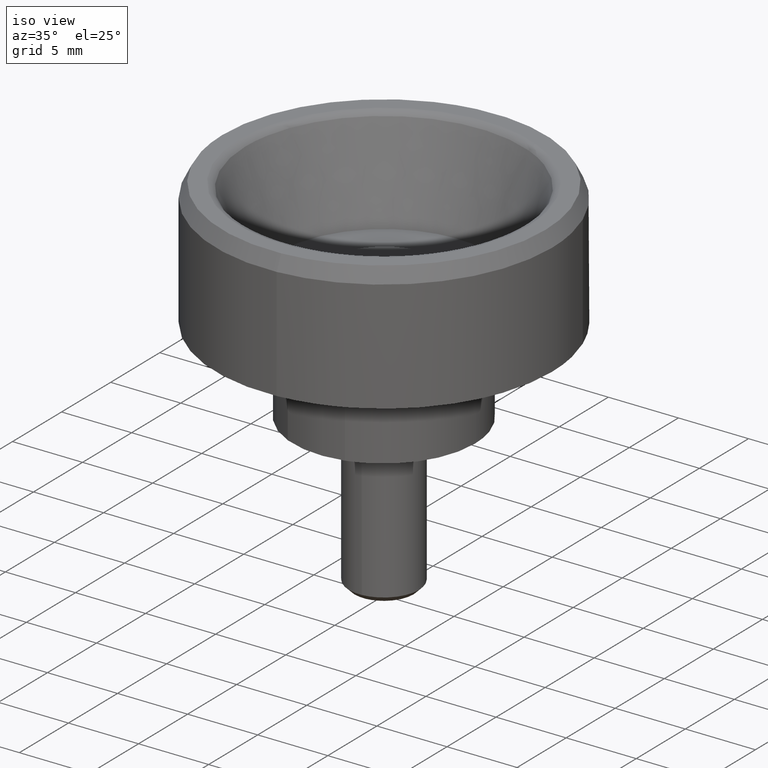
[diagram: clean part render]
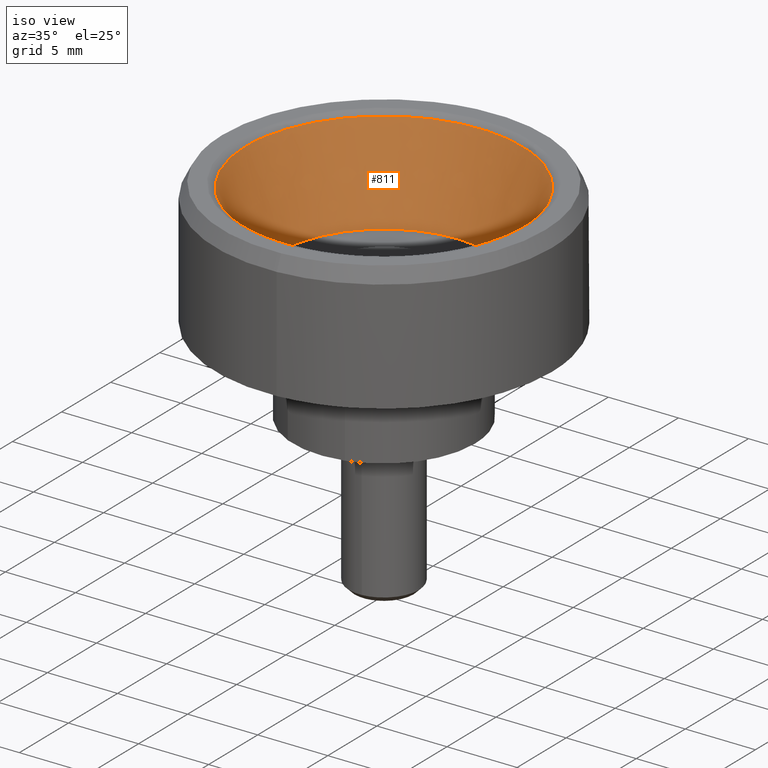
[diagram: same view with one face highlighted and labeled with its STEP entity id]
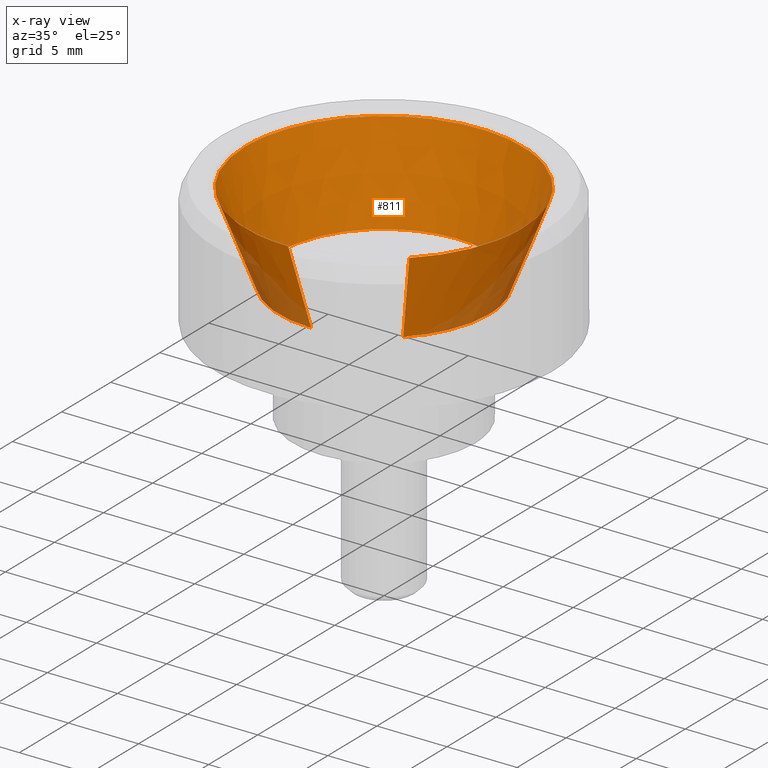
[diagram: x-ray of the same camera — body ghosted, the highlighted face saturated]
A machine part, iso view. The second image highlights one B-rep face of the part: STEP entity #811.
The next image is the same camera in x-ray: the body ghosted, the highlighted face saturated — about 8% of this face is hidden behind the body in this view.
In plain terms, the highlighted face is a freeform B-spline surface patch.
Its self-contained STEP definition (entity closure, byte-faithful):
#641=CARTESIAN_POINT('',(5.131317220042669,-5.388120412191873,9.345512761504658));
#642=CARTESIAN_POINT('',(7.468462703307026,-3.162365613378687,9.345512761504660));
#643=CARTESIAN_POINT('',(7.440298516791025,0.064930501479818,9.345512761504660));
#644=CARTESIAN_POINT('',(7.375368015311206,7.505229018270842,9.345512761504660));
#645=CARTESIAN_POINT('',(-0.064930501479818,7.440298516791025,9.345512761504660));
#646=CARTESIAN_POINT('',(-7.505229018270842,7.375368015311206,9.345512761504660));
#647=CARTESIAN_POINT('',(-7.440298516791025,-0.064930501479818,9.345512761504660));
#648=CARTESIAN_POINT('',(-7.375368015311206,-7.505229018270842,9.345512761504660));
#649=CARTESIAN_POINT('',(0.064930501479818,-7.440298516791025,9.345512761504660));
#650=CARTESIAN_POINT('',(6.853379882709580,-7.196365855982995,15.837838959271267));
#651=CARTESIAN_POINT('',(9.974868021350973,-4.223650954933913,15.837838959271261));
#652=CARTESIAN_POINT('',(9.937251974436602,0.086721084184370,15.837838959271259));
#653=CARTESIAN_POINT('',(9.850530890252234,10.023973058620973,15.837838959271258));
#654=CARTESIAN_POINT('',(-0.086721084184370,9.937251974436602,15.837838959271259));
#655=CARTESIAN_POINT('',(-10.023973058620973,9.850530890252234,15.837838959271258));
#656=CARTESIAN_POINT('',(-9.937251974436602,-0.086721084184370,15.837838959271259));
#657=CARTESIAN_POINT('',(-9.850530890252234,-10.023973058620973,15.837838959271258));
#658=CARTESIAN_POINT('',(0.086721084184370,-9.937251974436602,15.837838959271259));
#666=(BOUNDED_SURFACE()B_SPLINE_SURFACE(2,1,((#641,#650),(#642,#651),(#643,#652),(#644,#653),(#645,#654),(#646,#655),(#647,#656),(#648,#657),(#649,#658)),.UNSPECIFIED.,.F.,.F.,.U.)B_SPLINE_SURFACE_WITH_KNOTS((3,2,2,2,3),(2,2),(0.0,8.561906655473647,25.027111762153730,41.492316868833832,57.957521975513913),(0.0,6.955972315740582),.UNSPECIFIED.)GEOMETRIC_REPRESENTATION_ITEM()RATIONAL_B_SPLINE_SURFACE(((0.853787705168325,0.853787705168325),(0.847695526217005,0.847695526217005),(1.0,1.0),(0.707106781186548,0.707106781186548),(1.0,1.0),(0.707106781186548,0.707106781186548),(1.0,1.0),(0.707106781186548,0.707106781186548),(1.0,1.0)))REPRESENTATION_ITEM('')SURFACE());
#667=CARTESIAN_POINT('',(6.811377173623031,-7.152261276861234,15.679485480187770));
#668=VERTEX_POINT('',#667);
#669=CARTESIAN_POINT('',(9.876726746020941,0.0,15.679489539654551));
#670=VERTEX_POINT('',#669);
#671=CARTESIAN_POINT('',(6.811377173623033,-7.152261276861234,15.679485480187770));
#672=CARTESIAN_POINT('',(9.876726207642573,-4.233010997704695,15.679487509921163));
#673=CARTESIAN_POINT('',(9.876726746020941,0.0,15.679489539654551));
#681=(BOUNDED_CURVE()B_SPLINE_CURVE(2,(#671,#672,#673),.UNSPECIFIED.,.F.,.U.)B_SPLINE_CURVE_WITH_KNOTS((3,3),(0.371317021656615,0.500000000000000),.UNSPECIFIED.)CURVE()GEOMETRIC_REPRESENTATION_ITEM()RATIONAL_B_SPLINE_CURVE((0.853680523397172,0.849238513066016,1.0))REPRESENTATION_ITEM(''));
#682=EDGE_CURVE('',#668,#670,#681,.T.);
#683=ORIENTED_EDGE('',*,*,#682,.T.);
#684=CARTESIAN_POINT('',(4.042197723796468,9.011679575852480,15.679489539725150));
#685=VERTEX_POINT('',#684);
#686=CARTESIAN_POINT('',(9.876726746020941,0.0,15.679489539654551));
#687=CARTESIAN_POINT('',(9.876726746020941,6.394595853021036,15.679489539654556));
#688=CARTESIAN_POINT('',(4.042197723796468,9.011679575852480,15.679489539725159));
#696=(BOUNDED_CURVE()B_SPLINE_CURVE(2,(#686,#687,#688),.UNSPECIFIED.,.F.,.U.)B_SPLINE_CURVE_WITH_KNOTS((3,3),(0.500000000000000,0.680498914563150),.UNSPECIFIED.)CURVE()GEOMETRIC_REPRESENTATION_ITEM()RATIONAL_B_SPLINE_CURVE((1.0,0.788532367685059,0.882422160154807))REPRESENTATION_ITEM(''));
#697=EDGE_CURVE('',#670,#685,#696,.T.);
#698=ORIENTED_EDGE('',*,*,#697,.T.);
#699=CARTESIAN_POINT('',(-9.228111655598362,3.520182735112380,15.679489539813540));
#700=VERTEX_POINT('',#699);
#701=CARTESIAN_POINT('',(4.042197723796467,9.011679575852480,15.679489539725157));
#702=CARTESIAN_POINT('',(2.113660712870575,9.876726746020941,15.679489539654556));
#703=CARTESIAN_POINT('',(0.0,9.876726746020941,15.679489539654551));
#704=CARTESIAN_POINT('',(-6.803325597744424,9.876726746020943,15.679489539654558));
#705=CARTESIAN_POINT('',(-9.228111655598362,3.520182735112381,15.679489539813549));
#713=(BOUNDED_CURVE()B_SPLINE_CURVE(2,(#701,#702,#703,#704,#705),.UNSPECIFIED.,.F.,.U.)B_SPLINE_CURVE_WITH_KNOTS((3,2,3),(0.680498914563149,0.750000000000000,0.939474988085832),.UNSPECIFIED.)CURVE()GEOMETRIC_REPRESENTATION_ITEM()RATIONAL_B_SPLINE_CURVE((0.882422160154806,0.918574413501488,1.0,0.778016243419600,0.892515443905757))REPRESENTATION_ITEM(''));
#714=EDGE_CURVE('',#685,#700,#713,.T.);
#715=ORIENTED_EDGE('',*,*,#714,.T.);
#716=CARTESIAN_POINT('',(-9.876726746020941,0.0,15.679489539654551));
#717=VERTEX_POINT('',#716);
#718=CARTESIAN_POINT('',(-9.228111655598362,3.520182735112380,15.679489539813542));
#719=CARTESIAN_POINT('',(-9.876726746020941,1.819847006282348,15.679489539654549));
#720=CARTESIAN_POINT('',(-9.876726746020941,0.0,15.679489539654551));
#728=(BOUNDED_CURVE()B_SPLINE_CURVE(2,(#718,#719,#720),.UNSPECIFIED.,.F.,.U.)B_SPLINE_CURVE_WITH_KNOTS((3,3),(0.939474988085832,1.0),.UNSPECIFIED.)CURVE()GEOMETRIC_REPRESENTATION_ITEM()RATIONAL_B_SPLINE_CURVE((0.892515443905757,0.929090537766947,1.0))REPRESENTATION_ITEM(''));
#729=EDGE_CURVE('',#700,#717,#728,.T.);
#730=ORIENTED_EDGE('',*,*,#729,.T.);
#731=CARTESIAN_POINT('',(0.086189606573618,-9.876350670531451,15.679489539657570));
#732=VERTEX_POINT('',#731);
#733=CARTESIAN_POINT('',(-9.876726746020941,0.0,15.679489539654551));
#734=CARTESIAN_POINT('',(-9.876726746020941,-9.876726746020941,15.679489539654551));
#735=CARTESIAN_POINT('',(0.0,-9.876726746020941,15.679489539654551));
#736=CARTESIAN_POINT('',(0.043095623769813,-9.876726746020939,15.679489539654549));
#737=CARTESIAN_POINT('',(0.086189606573618,-9.876350670531451,15.679489539657569));
#745=(BOUNDED_CURVE()B_SPLINE_CURVE(2,(#733,#734,#735,#736,#737),.UNSPECIFIED.,.F.,.U.)B_SPLINE_CURVE_WITH_KNOTS((3,2,3),(0.0,0.250000000000000,0.251539894335583),.UNSPECIFIED.)CURVE()GEOMETRIC_REPRESENTATION_ITEM()RATIONAL_B_SPLINE_CURVE((1.0,0.707106781186547,1.0,0.998195901565674,0.996414028099026))REPRESENTATION_ITEM(''));
#746=EDGE_CURVE('',#717,#732,#745,.T.);
#747=ORIENTED_EDGE('',*,*,#746,.T.);
#748=CARTESIAN_POINT('',(0.065449016250083,-7.499714422982028,9.500000000002213));
#749=VERTEX_POINT('',#748);
#750=CARTESIAN_POINT('',(0.065449016250083,-7.499714422982028,9.500000000002213));
#751=CARTESIAN_POINT('',(0.086189606573618,-9.876350670531451,15.679489539657570));
#752=QUASI_UNIFORM_CURVE('',1,(#750,#751),.UNSPECIFIED.,.F.,.U.);
#753=EDGE_CURVE('',#749,#732,#752,.T.);
#754=ORIENTED_EDGE('',*,*,#753,.F.);
#755=CARTESIAN_POINT('',(-7.500000000000000,0.0,9.500000000000000));
#756=VERTEX_POINT('',#755);
#757=CARTESIAN_POINT('',(0.065449016250083,-7.499714422982029,9.500000000002213));
#758=CARTESIAN_POINT('',(0.032725131167532,-7.500000000000001,9.500000000000000));
#759=CARTESIAN_POINT('',(0.0,-7.500000000000000,9.500000000000000));
#760=CARTESIAN_POINT('',(-7.500000000000000,-7.500000000000000,9.500000000000000));
#761=CARTESIAN_POINT('',(-7.500000000000000,0.0,9.500000000000000));
#769=(BOUNDED_CURVE()B_SPLINE_CURVE(2,(#757,#758,#759,#760,#761),.UNSPECIFIED.,.F.,.U.)B_SPLINE_CURVE_WITH_KNOTS((3,2,3),(0.748460105664437,0.750000000000000,1.0),.UNSPECIFIED.)CURVE()GEOMETRIC_REPRESENTATION_ITEM()RATIONAL_B_SPLINE_CURVE((0.996414028099072,0.998195901565697,1.0,0.707106781186547,1.0))REPRESENTATION_ITEM(''));
#770=EDGE_CURVE('',#749,#756,#769,.T.);
#771=ORIENTED_EDGE('',*,*,#770,.T.);
#772=CARTESIAN_POINT('',(7.500000000000000,0.0,9.500000000000000));
#773=VERTEX_POINT('',#772);
#774=CARTESIAN_POINT('',(-7.500000000000000,0.0,9.500000000000000));
#775=CARTESIAN_POINT('',(-7.500000000000000,7.500000000000000,9.500000000000000));
#776=CARTESIAN_POINT('',(0.0,7.500000000000000,9.500000000000000));
#777=CARTESIAN_POINT('',(7.500000000000000,7.500000000000000,9.500000000000000));
#778=CARTESIAN_POINT('',(7.500000000000000,0.0,9.500000000000000));
#786=(BOUNDED_CURVE()B_SPLINE_CURVE(2,(#774,#775,#776,#777,#778),.UNSPECIFIED.,.F.,.U.)B_SPLINE_CURVE_WITH_KNOTS((3,2,3),(0.0,0.250000000000000,0.500000000000000),.UNSPECIFIED.)CURVE()GEOMETRIC_REPRESENTATION_ITEM()RATIONAL_B_SPLINE_CURVE((1.0,0.707106781186547,1.0,0.707106781186547,1.0))REPRESENTATION_ITEM(''));
#787=EDGE_CURVE('',#756,#773,#786,.T.);
#788=ORIENTED_EDGE('',*,*,#787,.T.);
#789=CARTESIAN_POINT('',(5.172294320879773,-5.431148263322856,9.500000000000007));
#790=VERTEX_POINT('',#789);
#791=CARTESIAN_POINT('',(7.500000000000000,0.0,9.500000000000000));
#792=CARTESIAN_POINT('',(7.500000000000000,-3.214383358173965,9.500000000000000));
#793=CARTESIAN_POINT('',(5.172294320879773,-5.431148263322858,9.500000000000007));
#801=(BOUNDED_CURVE()B_SPLINE_CURVE(2,(#791,#792,#793),.UNSPECIFIED.,.F.,.U.)B_SPLINE_CURVE_WITH_KNOTS((3,3),(0.500000000000000,0.628682976150476),.UNSPECIFIED.)CURVE()GEOMETRIC_REPRESENTATION_ITEM()RATIONAL_B_SPLINE_CURVE((1.0,0.849238515635169,0.853680523245778))REPRESENTATION_ITEM(''));
#802=EDGE_CURVE('',#773,#790,#801,.T.);
#803=ORIENTED_EDGE('',*,*,#802,.T.);
#804=CARTESIAN_POINT('',(5.172294320879773,-5.431148263322856,9.500000000000007));
#805=CARTESIAN_POINT('',(6.811377173623031,-7.152261276861234,15.679485480187770));
#806=QUASI_UNIFORM_CURVE('',1,(#804,#805),.UNSPECIFIED.,.F.,.U.);
#807=EDGE_CURVE('',#790,#668,#806,.T.);
#808=ORIENTED_EDGE('',*,*,#807,.T.);
#809=EDGE_LOOP('',(#683,#698,#715,#730,#747,#754,#771,#788,#803,#808));
#810=FACE_OUTER_BOUND('',#809,.T.);
#811=ADVANCED_FACE('',(#810),#666,.F.);